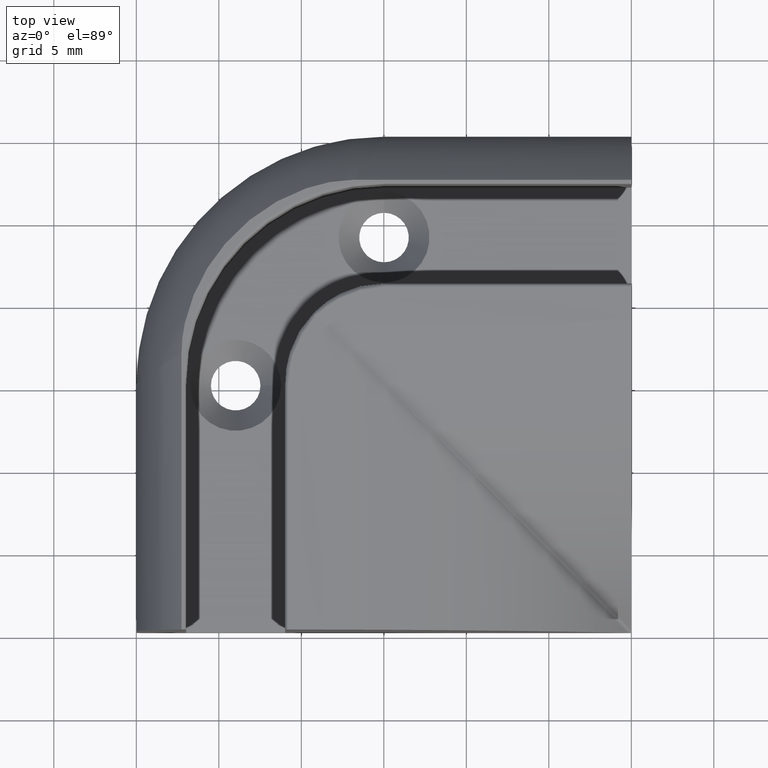
[diagram: clean part render]
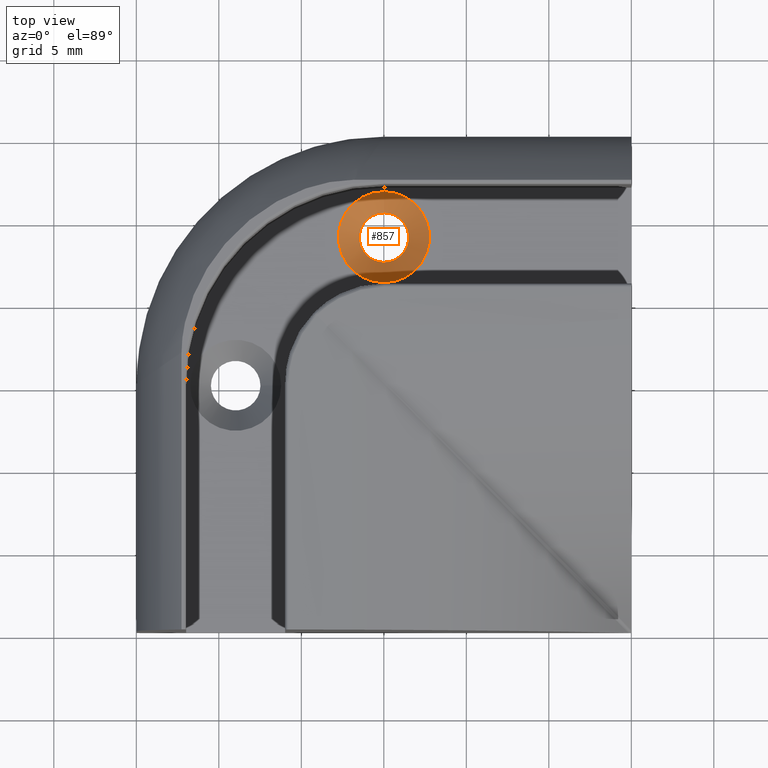
[diagram: same view with one face highlighted and labeled with its STEP entity id]
A machine part, top view. The second image highlights one B-rep face of the part: STEP entity #857.
In plain terms, the highlighted face is a freeform B-spline surface patch.
Its self-contained STEP definition (entity closure, byte-faithful):
#95=CARTESIAN_POINT('',(-14.989539913220938,27.040811258661051,1.196921255959977));
#96=VERTEX_POINT('',#95);
#97=CARTESIAN_POINT('',(-14.989539913220938,21.523520882428102,1.196921255959977));
#98=VERTEX_POINT('',#97);
#99=CARTESIAN_POINT('',(-14.989539913220938,24.282166070544577,1.196921255959977));
#100=DIRECTION('',(0.0,-6.123234E-017,-1.0));
#101=DIRECTION('',(0.0,1.0,-6.123234E-017));
#102=AXIS2_PLACEMENT_3D('',#99,#100,#101);
#103=CIRCLE('',#102,2.758645188116475);
#104=EDGE_CURVE('',#96,#98,#103,.T.);
#106=CARTESIAN_POINT('',(-14.989539913220938,24.282166070544577,1.196921255959977));
#107=DIRECTION('',(0.0,-6.123234E-017,-1.0));
#108=DIRECTION('',(0.0,1.0,-6.123234E-017));
#109=AXIS2_PLACEMENT_3D('',#106,#107,#108);
#110=CIRCLE('',#109,2.758645188116475);
#111=EDGE_CURVE('',#98,#96,#110,.T.);
#623=CARTESIAN_POINT('',(-14.989539913220938,22.782169070544569,-0.303077244039970));
#624=VERTEX_POINT('',#623);
#625=CARTESIAN_POINT('',(-14.989539913220938,25.782163070544584,-0.303077244039970));
#626=VERTEX_POINT('',#625);
#627=CARTESIAN_POINT('',(-14.989539913220938,24.282166070544577,-0.303077244039970));
#628=DIRECTION('',(0.0,-6.123234E-017,-1.0));
#629=DIRECTION('',(0.0,1.0,-6.123234E-017));
#630=AXIS2_PLACEMENT_3D('',#627,#628,#629);
#631=CIRCLE('',#630,1.499997000000008);
#632=EDGE_CURVE('',#624,#626,#631,.T.);
#634=CARTESIAN_POINT('',(-14.989539913220938,24.282166070544577,-0.303077244039970));
#635=DIRECTION('',(0.0,-6.123234E-017,-1.0));
#636=DIRECTION('',(0.0,1.0,-6.123234E-017));
#637=AXIS2_PLACEMENT_3D('',#634,#635,#636);
#638=CIRCLE('',#637,1.499997000000008);
#639=EDGE_CURVE('',#626,#624,#638,.T.);
#818=CARTESIAN_POINT('',(-14.989539913220938,25.782163070544584,-0.303077244039970));
#819=CARTESIAN_POINT('',(-13.489542913220930,25.782163070544584,-0.303077244039970));
#820=CARTESIAN_POINT('',(-13.489542913220930,24.282166070544577,-0.303077244039970));
#821=CARTESIAN_POINT('',(-13.489542913220930,22.782169070544569,-0.303077244039970));
#822=CARTESIAN_POINT('',(-14.989539913220938,22.782169070544569,-0.303077244039970));
#823=CARTESIAN_POINT('',(-16.489536913220945,22.782169070544569,-0.303077244039970));
#824=CARTESIAN_POINT('',(-16.489536913220945,24.282166070544577,-0.303077244039970));
#825=CARTESIAN_POINT('',(-16.489536913220945,25.782163070544584,-0.303077244039970));
#826=CARTESIAN_POINT('',(-14.989539913220938,25.782163070544584,-0.303077244039970));
#827=CARTESIAN_POINT('',(-14.989539913220938,27.040811258661051,1.196921255959977));
#828=CARTESIAN_POINT('',(-12.230894725104463,27.040811258661051,1.196921255959977));
#829=CARTESIAN_POINT('',(-12.230894725104463,24.282166070544577,1.196921255959977));
#830=CARTESIAN_POINT('',(-12.230894725104463,21.523520882428102,1.196921255959977));
#831=CARTESIAN_POINT('',(-14.989539913220938,21.523520882428102,1.196921255959977));
#832=CARTESIAN_POINT('',(-17.748185101337413,21.523520882428102,1.196921255959977));
#833=CARTESIAN_POINT('',(-17.748185101337413,24.282166070544577,1.196921255959977));
#834=CARTESIAN_POINT('',(-17.748185101337413,27.040811258661051,1.196921255959977));
#835=CARTESIAN_POINT('',(-14.989539913220938,27.040811258661051,1.196921255959977));
#843=(BOUNDED_SURFACE()B_SPLINE_SURFACE(2,1,((#818,#827),(#819,#828),(#820,#829),(#821,#830),(#822,#831),(#823,#832),(#824,#833),(#825,#834),(#826,#835)),.UNSPECIFIED.,.T.,.F.,.U.)B_SPLINE_SURFACE_WITH_KNOTS((3,2,2,2,3),(2,2),(0.0,0.250000000000000,0.500000000000000,0.750000000000000,1.0),(-1.958108975887440,0.0),.UNSPECIFIED.)GEOMETRIC_REPRESENTATION_ITEM()RATIONAL_B_SPLINE_SURFACE(((1.0,1.0),(0.707106781186548,0.707106781186548),(1.0,1.0),(0.707106781186548,0.707106781186548),(1.0,1.0),(0.707106781186548,0.707106781186548),(1.0,1.0),(0.707106781186548,0.707106781186548),(1.0,1.0)))REPRESENTATION_ITEM('')SURFACE());
#844=ORIENTED_EDGE('',*,*,#639,.T.);
#845=ORIENTED_EDGE('',*,*,#632,.T.);
#846=CARTESIAN_POINT('',(-14.989539913220938,25.782163070544584,-0.303077244039970));
#847=DIRECTION('',(0.0,0.642787609686551,0.766044443118968));
#848=VECTOR('',#847,1.958108975887440);
#849=LINE('',#846,#848);
#850=EDGE_CURVE('',#626,#96,#849,.T.);
#851=ORIENTED_EDGE('',*,*,#850,.T.);
#852=ORIENTED_EDGE('',*,*,#111,.F.);
#853=ORIENTED_EDGE('',*,*,#104,.F.);
#854=ORIENTED_EDGE('',*,*,#850,.F.);
#855=EDGE_LOOP('',(#844,#845,#851,#852,#853,#854));
#856=FACE_OUTER_BOUND('',#855,.T.);
#857=ADVANCED_FACE('',(#856),#843,.T.);